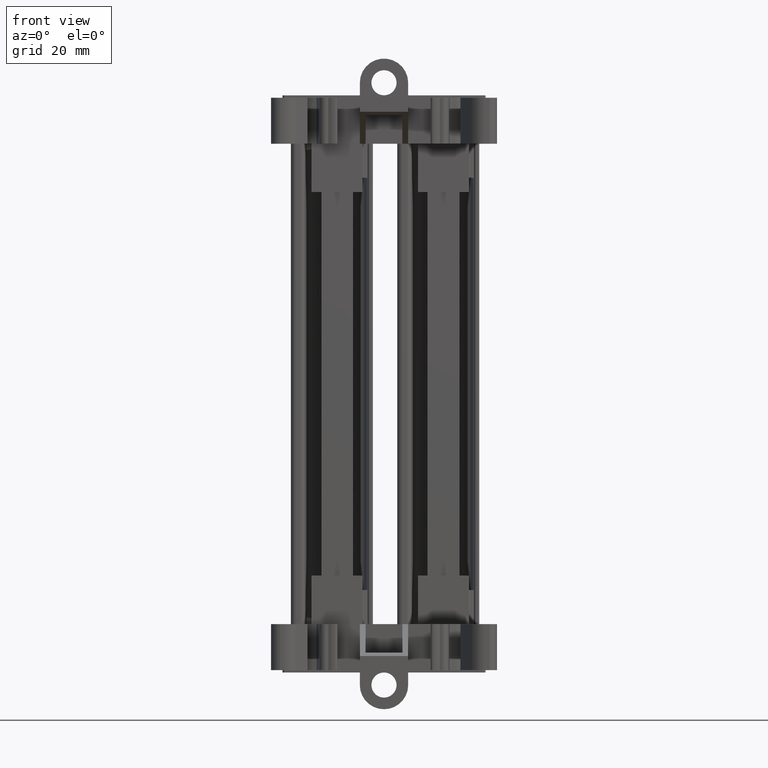
[diagram: clean part render]
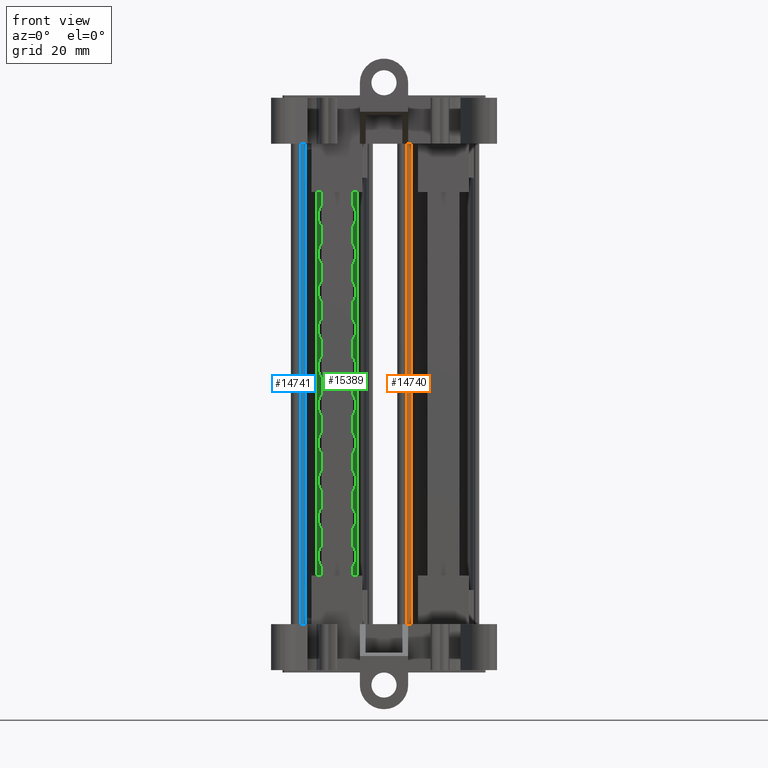
[diagram: same view with three faces highlighted in distinct colors, each labeled with its STEP entity id]
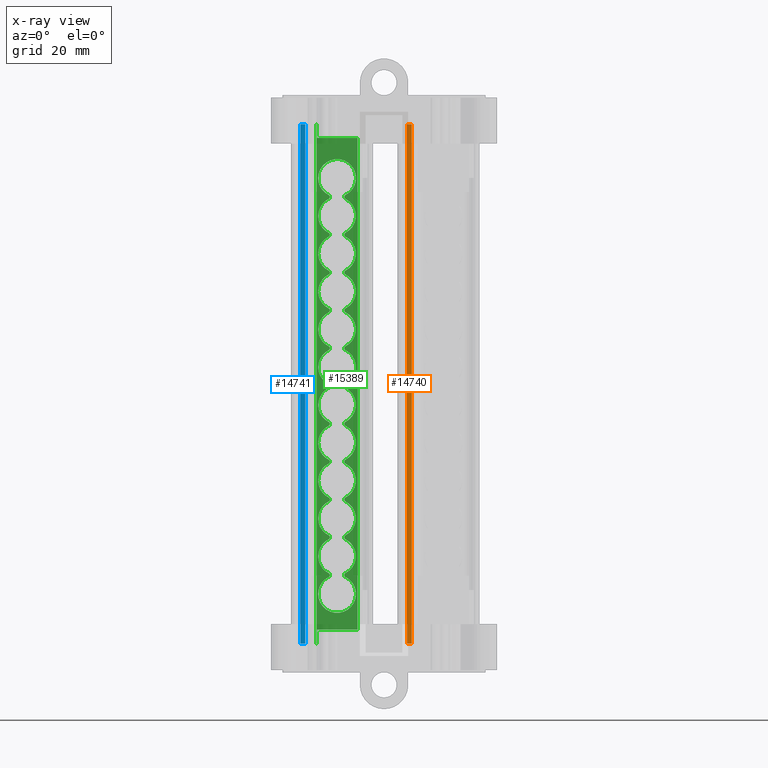
[diagram: x-ray of the same camera — body ghosted, the three highlighted faces saturated]
A machine part, front view with three faces highlighted in distinct colors.
The next image is the same camera in x-ray (body ghosted, the three faces saturated) — at least one of them is partly hidden behind the body in this view.
Their STEP definitions:

[orange] entity #14740 — the highlighted cylindrical surface (edge-blend (fillet) strip) has radius 0.9996 mm, axis along (-0, -0, -1).
#5645 = ORIENTED_EDGE ( 'NONE', *, *, #13143, .F. ) ;
#5649 = ORIENTED_EDGE ( 'NONE', *, *, #13065, .T. ) ;
#5653 = ORIENTED_EDGE ( 'NONE', *, *, #13183, .T. ) ;
#5663 = ORIENTED_EDGE ( 'NONE', *, *, #13235, .T. ) ;
#13065 = EDGE_CURVE ( 'NONE', #21042, #21077, #49789, .T. ) ;
#13143 = EDGE_CURVE ( 'NONE', #21042, #21078, #39813, .T. ) ;
#13183 = EDGE_CURVE ( 'NONE', #21077, #21065, #39963, .T. ) ;
#13235 = EDGE_CURVE ( 'NONE', #21065, #21078, #49034, .T. ) ;
#14740 = ADVANCED_FACE ( 'NONE', ( #48040 ), #48051, .T. ) ;
#21042 = VERTEX_POINT ( 'NONE', #64377 ) ;
#21065 = VERTEX_POINT ( 'NONE', #64415 ) ;
#21077 = VERTEX_POINT ( 'NONE', #64417 ) ;
#21078 = VERTEX_POINT ( 'NONE', #64397 ) ;
#38528 = DIRECTION ( 'NONE',  ( 2.546410930752312900E-013, 1.604972357196125300E-014, 1.000000000000000000 ) ) ;
#38540 = CARTESIAN_POINT ( 'NONE',  ( -42.11266066103439000, 26.32396892253897400, -36.09779384098946100 ) ) ;
#38542 = DIRECTION ( 'NONE',  ( -1.000000000000000000, 0.0000000000000000000, 2.568363609471387600E-013 ) ) ;
#39288 = CARTESIAN_POINT ( 'NONE',  ( -42.11266066100712600, 26.32396892254069300, 70.97218928989246900 ) ) ;
#39289 = DIRECTION ( 'NONE',  ( -1.387778780767670500E-017, -9.690813043904511800E-032, -1.000000000000000000 ) ) ;
#39317 = DIRECTION ( 'NONE',  ( 1.000000000000000000, 0.0000000000000000000, 0.0000000000000000000 ) ) ;
#39808 = CARTESIAN_POINT ( 'NONE',  ( -41.11319169604625800, 26.30652312685981200, 69.93349374701759300 ) ) ;
#39813 = LINE ( 'NONE', #39808, #48862 ) ;
#39830 = DIRECTION ( 'NONE',  ( -2.682451407240271800E-013, 4.682236348910204400E-015, -1.000000000000000000 ) ) ;
#39958 = DIRECTION ( 'NONE',  ( -2.546410930752312900E-013, -1.604972357196125300E-014, -1.000000000000000000 ) ) ;
#39963 = LINE ( 'NONE', #39979, #48928 ) ;
#39979 = CARTESIAN_POINT ( 'NONE',  ( -42.11266066100613900, 25.32434771042809600, 70.93311495913008000 ) ) ;
#46882 = AXIS2_PLACEMENT_3D ( 'NONE', #48052, #48028, #48026 ) ;
#48026 = DIRECTION ( 'NONE',  ( -1.000000000000000000, 0.0000000000000000000, 2.498948376782971800E-013 ) ) ;
#48028 = DIRECTION ( 'NONE',  ( -2.546410930752312900E-013, -1.604972357196125300E-014, -1.000000000000000000 ) ) ;
#48040 = FACE_OUTER_BOUND ( 'NONE', #61340, .T. ) ;
#48051 = CYLINDRICAL_SURFACE ( 'NONE', #46882, 0.9996212121125974700 ) ;
#48052 = CARTESIAN_POINT ( 'NONE',  ( -42.11266066100713300, 26.32396892254069300, 70.93311495913006600 ) ) ;
#48862 = VECTOR ( 'NONE', #39830, 1000.000000000000000 ) ;
#48928 = VECTOR ( 'NONE', #39958, 1000.000000000000000 ) ;
#49032 = AXIS2_PLACEMENT_3D ( 'NONE', #38540, #38528, #38542 ) ;
#49034 = CIRCLE ( 'NONE', #49032, 0.9996212121125974700 ) ;
#49789 = CIRCLE ( 'NONE', #49802, 0.9996212121125974700 ) ;
#49802 = AXIS2_PLACEMENT_3D ( 'NONE', #39288, #39289, #39317 ) ;
#61340 = EDGE_LOOP ( 'NONE', ( #5645, #5649, #5653, #5663 ) ) ;
#64377 = CARTESIAN_POINT ( 'NONE',  ( -41.11319169604598800, 26.30652312685969500, 70.97218928989246900 ) ) ;
#64397 = CARTESIAN_POINT ( 'NONE',  ( -41.11319169607451600, 26.30652312685969500, -36.09779384098961700 ) ) ;
#64415 = CARTESIAN_POINT ( 'NONE',  ( -42.11266066103039000, 25.32434771042624900, -36.09779384098944600 ) ) ;
#64417 = CARTESIAN_POINT ( 'NONE',  ( -42.11266066100613200, 25.32434771042809600, 70.97218928989246900 ) ) ;

[blue] entity #14741 — the highlighted cylindrical surface (edge-blend (fillet) strip) has radius 0.9996 mm, axis along (-0, -0, -1).
#5637 = ORIENTED_EDGE ( 'NONE', *, *, #13085, .T. ) ;
#5655 = ORIENTED_EDGE ( 'NONE', *, *, #13149, .F. ) ;
#5713 = ORIENTED_EDGE ( 'NONE', *, *, #13181, .T. ) ;
#5747 = ORIENTED_EDGE ( 'NONE', *, *, #12975, .T. ) ;
#12975 = EDGE_CURVE ( 'NONE', #21075, #21064, #49698, .T. ) ;
#13085 = EDGE_CURVE ( 'NONE', #21058, #21086, #48824, .T. ) ;
#13149 = EDGE_CURVE ( 'NONE', #21075, #21086, #39801, .T. ) ;
#13181 = EDGE_CURVE ( 'NONE', #21064, #21058, #39959, .T. ) ;
#14741 = ADVANCED_FACE ( 'NONE', ( #48044 ), #48036, .T. ) ;
#21058 = VERTEX_POINT ( 'NONE', #64353 ) ;
#21064 = VERTEX_POINT ( 'NONE', #64404 ) ;
#21075 = VERTEX_POINT ( 'NONE', #64416 ) ;
#21086 = VERTEX_POINT ( 'NONE', #64402 ) ;
#36849 = DIRECTION ( 'NONE',  ( 1.000000000000000000, 0.0000000000000000000, 0.0000000000000000000 ) ) ;
#36853 = DIRECTION ( 'NONE',  ( -1.387778780767670500E-017, -9.690813043904511800E-032, -1.000000000000000000 ) ) ;
#36859 = CARTESIAN_POINT ( 'NONE',  ( -64.04789127920845700, 14.35929767624860500, 70.97218928989246900 ) ) ;
#39515 = DIRECTION ( 'NONE',  ( 2.546410930752312900E-013, 1.604972357196125300E-014, 1.000000000000000000 ) ) ;
#39518 = CARTESIAN_POINT ( 'NONE',  ( -64.04789127923571400, 14.35929767624688600, -36.09779384098946100 ) ) ;
#39557 = DIRECTION ( 'NONE',  ( -1.000000000000000000, 0.0000000000000000000, 2.568363609471387600E-013 ) ) ;
#39801 = LINE ( 'NONE', #39888, #48852 ) ;
#39861 = DIRECTION ( 'NONE',  ( -2.682451407240271800E-013, 4.682236348910204400E-015, -1.000000000000000000 ) ) ;
#39888 = CARTESIAN_POINT ( 'NONE',  ( -63.04842231424758100, 14.34185188056802800, 69.96599374775758000 ) ) ;
#39955 = DIRECTION ( 'NONE',  ( -2.546410930752312900E-013, -1.604972357196125300E-014, -1.000000000000000000 ) ) ;
#39959 = LINE ( 'NONE', #39988, #48967 ) ;
#39988 = CARTESIAN_POINT ( 'NONE',  ( -64.04789127920820100, 13.35967646413600800, 70.96561495987006700 ) ) ;
#46926 = AXIS2_PLACEMENT_3D ( 'NONE', #48037, #48063, #48042 ) ;
#48036 = CYLINDRICAL_SURFACE ( 'NONE', #46926, 0.9996212121125974700 ) ;
#48037 = CARTESIAN_POINT ( 'NONE',  ( -64.04789127920845700, 14.35929767624860500, 70.96561495987005200 ) ) ;
#48042 = DIRECTION ( 'NONE',  ( -1.000000000000000000, 0.0000000000000000000, 2.498948376782971800E-013 ) ) ;
#48044 = FACE_OUTER_BOUND ( 'NONE', #61246, .T. ) ;
#48063 = DIRECTION ( 'NONE',  ( -2.546410930752312900E-013, -1.604972357196125300E-014, -1.000000000000000000 ) ) ;
#48821 = AXIS2_PLACEMENT_3D ( 'NONE', #39518, #39515, #39557 ) ;
#48824 = CIRCLE ( 'NONE', #48821, 0.9996212121125974700 ) ;
#48852 = VECTOR ( 'NONE', #39861, 1000.000000000000000 ) ;
#48967 = VECTOR ( 'NONE', #39955, 1000.000000000000000 ) ;
#49698 = CIRCLE ( 'NONE', #49700, 0.9996212121125974700 ) ;
#49700 = AXIS2_PLACEMENT_3D ( 'NONE', #36859, #36853, #36849 ) ;
#61246 = EDGE_LOOP ( 'NONE', ( #5655, #5747, #5713, #5637 ) ) ;
#64353 = CARTESIAN_POINT ( 'NONE',  ( -64.04789127923560000, 13.35967646413409300, -36.09779384098944600 ) ) ;
#64402 = CARTESIAN_POINT ( 'NONE',  ( -63.04842231427604600, 14.34185188056748600, -36.09779384098980900 ) ) ;
#64404 = CARTESIAN_POINT ( 'NONE',  ( -64.04789127920820100, 13.35967646413600800, 70.97218928989246900 ) ) ;
#64416 = CARTESIAN_POINT ( 'NONE',  ( -63.04842231424731800, 14.34185188056748900, 70.97218928989246900 ) ) ;

[green] entity #15389 — the highlighted planar face has unit normal (-0, -1, 0).
#9682 = EDGE_CURVE ( 'NONE', #21277, #21313, #34968, .T. ) ;
#9687 = EDGE_CURVE ( 'NONE', #21229, #21195, #34874, .T. ) ;
#9694 = EDGE_CURVE ( 'NONE', #21313, #21215, #35008, .T. ) ;
#9697 = EDGE_CURVE ( 'NONE', #21195, #21289, #35018, .T. ) ;
#9711 = EDGE_CURVE ( 'NONE', #21067, #21184, #23380, .T. ) ;
#9712 = EDGE_CURVE ( 'NONE', #21235, #21270, #35014, .T. ) ;
#9731 = EDGE_CURVE ( 'NONE', #21271, #21277, #34977, .T. ) ;
#9738 = EDGE_CURVE ( 'NONE', #21270, #21271, #35036, .T. ) ;
#9747 = EDGE_CURVE ( 'NONE', #21324, #21243, #35088, .T. ) ;
#9756 = EDGE_CURVE ( 'NONE', #21296, #20877, #35086, .T. ) ;
#9778 = EDGE_CURVE ( 'NONE', #21282, #21072, #24656, .T. ) ;
#9784 = EDGE_CURVE ( 'NONE', #21228, #21324, #35055, .T. ) ;
#9785 = EDGE_CURVE ( 'NONE', #20875, #21218, #35062, .T. ) ;
#9787 = EDGE_CURVE ( 'NONE', #21289, #21235, #35052, .T. ) ;
#9795 = EDGE_CURVE ( 'NONE', #21283, #21239, #35216, .T. ) ;
#9797 = EDGE_CURVE ( 'NONE', #21218, #20835, #35240, .T. ) ;
#9799 = EDGE_CURVE ( 'NONE', #20821, #21247, #35227, .T. ) ;
#9802 = EDGE_CURVE ( 'NONE', #20892, #21240, #35114, .T. ) ;
#9803 = EDGE_CURVE ( 'NONE', #20834, #21296, #35225, .T. ) ;
#9804 = EDGE_CURVE ( 'NONE', #21224, #21290, #24746, .T. ) ;
#9807 = EDGE_CURVE ( 'NONE', #21226, #21229, #35205, .T. ) ;
#9808 = EDGE_CURVE ( 'NONE', #21239, #21326, #35229, .T. ) ;
#9809 = EDGE_CURVE ( 'NONE', #20880, #21225, #35127, .T. ) ;
#9811 = EDGE_CURVE ( 'NONE', #21216, #21339, #35157, .T. ) ;
#9813 = EDGE_CURVE ( 'NONE', #21339, #21260, #35116, .T. ) ;
#9814 = EDGE_CURVE ( 'NONE', #21184, #21224, #24770, .T. ) ;
#9820 = EDGE_CURVE ( 'NONE', #21245, #21283, #35144, .T. ) ;
#9821 = EDGE_CURVE ( 'NONE', #20876, #21295, #35207, .T. ) ;
#9823 = EDGE_CURVE ( 'NONE', #20863, #21276, #35214, .T. ) ;
#9824 = EDGE_CURVE ( 'NONE', #20886, #21213, #35142, .T. ) ;
#9825 = EDGE_CURVE ( 'NONE', #20867, #21273, #35209, .T. ) ;
#9826 = EDGE_CURVE ( 'NONE', #21290, #21249, #24779, .T. ) ;
#9827 = EDGE_CURVE ( 'NONE', #21225, #20883, #35242, .T. ) ;
#9830 = EDGE_CURVE ( 'NONE', #20811, #21238, #35307, .T. ) ;
#9832 = EDGE_CURVE ( 'NONE', #21249, #21217, #24845, .T. ) ;
#9835 = EDGE_CURVE ( 'NONE', #20829, #21334, #35283, .T. ) ;
#9836 = EDGE_CURVE ( 'NONE', #21326, #21216, #35357, .T. ) ;
#9840 = EDGE_CURVE ( 'NONE', #21240, #20822, #35364, .T. ) ;
#9841 = EDGE_CURVE ( 'NONE', #21318, #20897, #35300, .T. ) ;
#9848 = EDGE_CURVE ( 'NONE', #21276, #20840, #35375, .T. ) ;
#9852 = EDGE_CURVE ( 'NONE', #21217, #21282, #24932, .T. ) ;
#9856 = EDGE_CURVE ( 'NONE', #21260, #20902, #35296, .T. ) ;
#9869 = EDGE_CURVE ( 'NONE', #21247, #20903, #35253, .T. ) ;
#9870 = EDGE_CURVE ( 'NONE', #21295, #21228, #35350, .T. ) ;
#9877 = EDGE_CURVE ( 'NONE', #21213, #20855, #35508, .T. ) ;
#9882 = EDGE_CURVE ( 'NONE', #21243, #21226, #35426, .T. ) ;
#9890 = EDGE_CURVE ( 'NONE', #21238, #20871, #35458, .T. ) ;
#9899 = EDGE_CURVE ( 'NONE', #20891, #21318, #35440, .T. ) ;
#9901 = EDGE_CURVE ( 'NONE', #21334, #20870, #35386, .T. ) ;
#9907 = EDGE_CURVE ( 'NONE', #21215, #21245, #35400, .T. ) ;
#9918 = EDGE_CURVE ( 'NONE', #21273, #20879, #35490, .T. ) ;
#12397 = EDGE_CURVE ( 'NONE', #20899, #20834, #68872, .T. ) ;
#12423 = EDGE_CURVE ( 'NONE', #20883, #20899, #68824, .T. ) ;
#12472 = EDGE_CURVE ( 'NONE', #20877, #20829, #68921, .T. ) ;
#12486 = EDGE_CURVE ( 'NONE', #20855, #20856, #68813, .T. ) ;
#12493 = EDGE_CURVE ( 'NONE', #20835, #20888, #68859, .T. ) ;
#12509 = EDGE_CURVE ( 'NONE', #20840, #20797, #68979, .T. ) ;
#12516 = EDGE_CURVE ( 'NONE', #20870, #20874, #68946, .T. ) ;
#12521 = EDGE_CURVE ( 'NONE', #20857, #20886, #69023, .T. ) ;
#12544 = EDGE_CURVE ( 'NONE', #20874, #20863, #68932, .T. ) ;
#12551 = EDGE_CURVE ( 'NONE', #20904, #20867, #69033, .T. ) ;
#12565 = EDGE_CURVE ( 'NONE', #20797, #20876, #69015, .T. ) ;
#12572 = EDGE_CURVE ( 'NONE', #20879, #20857, #68944, .T. ) ;
#12586 = EDGE_CURVE ( 'NONE', #20822, #20811, #68972, .T. ) ;
#12592 = EDGE_CURVE ( 'NONE', #20897, #20892, #69006, .T. ) ;
#12642 = EDGE_CURVE ( 'NONE', #20871, #20820, #49266, .T. ) ;
#12665 = EDGE_CURVE ( 'NONE', #20902, #20864, #49237, .T. ) ;
#12672 = EDGE_CURVE ( 'NONE', #20864, #20891, #49294, .T. ) ;
#12678 = EDGE_CURVE ( 'NONE', #20820, #20875, #49248, .T. ) ;
#12698 = EDGE_CURVE ( 'NONE', #20903, #20904, #49254, .T. ) ;
#12781 = EDGE_CURVE ( 'NONE', #20856, #20880, #49363, .T. ) ;
#12795 = EDGE_CURVE ( 'NONE', #20888, #20821, #49417, .T. ) ;
#13069 = EDGE_CURVE ( 'NONE', #21067, #21072, #39338, .T. ) ;
#15389 = ADVANCED_FACE ( 'NONE', ( #51412, #51443 ), #51434, .T. ) ;
#20797 = VERTEX_POINT ( 'NONE', #58262 ) ;
#20811 = VERTEX_POINT ( 'NONE', #58182 ) ;
#20820 = VERTEX_POINT ( 'NONE', #58238 ) ;
#20821 = VERTEX_POINT ( 'NONE', #58236 ) ;
#20822 = VERTEX_POINT ( 'NONE', #58176 ) ;
#20829 = VERTEX_POINT ( 'NONE', #58268 ) ;
#20834 = VERTEX_POINT ( 'NONE', #58206 ) ;
#20835 = VERTEX_POINT ( 'NONE', #58274 ) ;
#20840 = VERTEX_POINT ( 'NONE', #58148 ) ;
#20855 = VERTEX_POINT ( 'NONE', #58212 ) ;
#20856 = VERTEX_POINT ( 'NONE', #58214 ) ;
#20857 = VERTEX_POINT ( 'NONE', #58222 ) ;
#20863 = VERTEX_POINT ( 'NONE', #58378 ) ;
#20864 = VERTEX_POINT ( 'NONE', #58354 ) ;
#20867 = VERTEX_POINT ( 'NONE', #58388 ) ;
#20870 = VERTEX_POINT ( 'NONE', #58390 ) ;
#20871 = VERTEX_POINT ( 'NONE', #58384 ) ;
#20874 = VERTEX_POINT ( 'NONE', #58302 ) ;
#20875 = VERTEX_POINT ( 'NONE', #58380 ) ;
#20876 = VERTEX_POINT ( 'NONE', #58304 ) ;
#20877 = VERTEX_POINT ( 'NONE', #58288 ) ;
#20879 = VERTEX_POINT ( 'NONE', #58296 ) ;
#20880 = VERTEX_POINT ( 'NONE', #58400 ) ;
#20883 = VERTEX_POINT ( 'NONE', #58320 ) ;
#20886 = VERTEX_POINT ( 'NONE', #58280 ) ;
#20888 = VERTEX_POINT ( 'NONE', #58356 ) ;
#20891 = VERTEX_POINT ( 'NONE', #58394 ) ;
#20892 = VERTEX_POINT ( 'NONE', #58318 ) ;
#20897 = VERTEX_POINT ( 'NONE', #58276 ) ;
#20899 = VERTEX_POINT ( 'NONE', #58372 ) ;
#20902 = VERTEX_POINT ( 'NONE', #58348 ) ;
#20903 = VERTEX_POINT ( 'NONE', #58340 ) ;
#20904 = VERTEX_POINT ( 'NONE', #58298 ) ;
#21067 = VERTEX_POINT ( 'NONE', #64434 ) ;
#21072 = VERTEX_POINT ( 'NONE', #64405 ) ;
#21184 = VERTEX_POINT ( 'NONE', #64492 ) ;
#21195 = VERTEX_POINT ( 'NONE', #64572 ) ;
#21213 = VERTEX_POINT ( 'NONE', #64527 ) ;
#21215 = VERTEX_POINT ( 'NONE', #64550 ) ;
#21216 = VERTEX_POINT ( 'NONE', #64561 ) ;
#21217 = VERTEX_POINT ( 'NONE', #64539 ) ;
#21218 = VERTEX_POINT ( 'NONE', #64574 ) ;
#21224 = VERTEX_POINT ( 'NONE', #64555 ) ;
#21225 = VERTEX_POINT ( 'NONE', #64536 ) ;
#21226 = VERTEX_POINT ( 'NONE', #64530 ) ;
#21228 = VERTEX_POINT ( 'NONE', #64541 ) ;
#21229 = VERTEX_POINT ( 'NONE', #64556 ) ;
#21235 = VERTEX_POINT ( 'NONE', #64518 ) ;
#21238 = VERTEX_POINT ( 'NONE', #64519 ) ;
#21239 = VERTEX_POINT ( 'NONE', #64565 ) ;
#21240 = VERTEX_POINT ( 'NONE', #64545 ) ;
#21243 = VERTEX_POINT ( 'NONE', #64525 ) ;
#21245 = VERTEX_POINT ( 'NONE', #64521 ) ;
#21247 = VERTEX_POINT ( 'NONE', #64551 ) ;
#21249 = VERTEX_POINT ( 'NONE', #64558 ) ;
#21260 = VERTEX_POINT ( 'NONE', #61649 ) ;
#21270 = VERTEX_POINT ( 'NONE', #61517 ) ;
#21271 = VERTEX_POINT ( 'NONE', #61652 ) ;
#21273 = VERTEX_POINT ( 'NONE', #61550 ) ;
#21276 = VERTEX_POINT ( 'NONE', #61601 ) ;
#21277 = VERTEX_POINT ( 'NONE', #61571 ) ;
#21282 = VERTEX_POINT ( 'NONE', #61607 ) ;
#21283 = VERTEX_POINT ( 'NONE', #61526 ) ;
#21289 = VERTEX_POINT ( 'NONE', #61643 ) ;
#21290 = VERTEX_POINT ( 'NONE', #61664 ) ;
#21295 = VERTEX_POINT ( 'NONE', #61589 ) ;
#21296 = VERTEX_POINT ( 'NONE', #61580 ) ;
#21313 = VERTEX_POINT ( 'NONE', #61496 ) ;
#21318 = VERTEX_POINT ( 'NONE', #61688 ) ;
#21324 = VERTEX_POINT ( 'NONE', #61844 ) ;
#21326 = VERTEX_POINT ( 'NONE', #61784 ) ;
#21334 = VERTEX_POINT ( 'NONE', #61769 ) ;
#21339 = VERTEX_POINT ( 'NONE', #61715 ) ;
#23263 = CARTESIAN_POINT ( 'NONE',  ( -56.50163004032099000, 35.55127427694061700, 13.08754677854850500 ) ) ;
#23273 = DIRECTION ( 'NONE',  ( 2.045596572148984500E-014, 1.000000000000000000, -1.600901665160075500E-014 ) ) ;
#23287 = DIRECTION ( 'NONE',  ( -1.000000000000000000, 2.134535553545133800E-014, 0.0000000000000000000 ) ) ;
#23292 = CARTESIAN_POINT ( 'NONE',  ( -54.57557499629883300, 35.55127427682691600, 9.189024051308850400 ) ) ;
#23296 = DIRECTION ( 'NONE',  ( 0.0000000000000000000, -3.101716830836148200E-014, -1.000000000000000000 ) ) ;
#23300 = CARTESIAN_POINT ( 'NONE',  ( -56.50163004031485800, 35.55127427694059600, 36.47868314198333900 ) ) ;
#23303 = DIRECTION ( 'NONE',  ( 2.045596572153223200E-014, 1.000000000000000000, -1.423023702367459700E-014 ) ) ;
#23311 = DIRECTION ( 'NONE',  ( -1.388304653784218700E-014, -1.000000000000000000, 2.776609307568437300E-014 ) ) ;
#23319 = DIRECTION ( 'NONE',  ( -1.000000000000000000, 2.134535553546299500E-014, 0.0000000000000000000 ) ) ;
#23323 = CARTESIAN_POINT ( 'NONE',  ( -54.57557499629271500, 35.55127427694060300, 32.58016041474370900 ) ) ;
#23327 = DIRECTION ( 'NONE',  ( -1.388304653798018700E-014, -1.000000000000000000, 1.388304653798018700E-014 ) ) ;
#23329 = DIRECTION ( 'NONE',  ( 0.0000000000000000000, -1.550858415429275900E-014, -1.000000000000000000 ) ) ;
#23380 = LINE ( 'NONE', #23397, #34980 ) ;
#23395 = CARTESIAN_POINT ( 'NONE',  ( -54.57557499629471200, 35.55127427688376000, 24.78311496026531200 ) ) ;
#23397 = CARTESIAN_POINT ( 'NONE',  ( -60.71356041057318700, 35.55127427689210200, 69.96599374775655600 ) ) ;
#23402 = DIRECTION ( 'NONE',  ( -1.388304653790417700E-014, -1.000000000000000000, 2.082456980685637300E-014 ) ) ;
#23416 = DIRECTION ( 'NONE',  ( 0.0000000000000000000, -1.550858415411490000E-014, -1.000000000000000000 ) ) ;
#23434 = DIRECTION ( 'NONE',  ( -2.686070184306041300E-013, -1.604972357196100300E-014, -1.000000000000000000 ) ) ;
#23473 = CARTESIAN_POINT ( 'NONE',  ( -54.57557499629676600, 35.55127427694059600, 16.98606950578713500 ) ) ;
#23482 = DIRECTION ( 'NONE',  ( 0.0000000000000000000, -1.550858415413606600E-014, -1.000000000000000000 ) ) ;
#23484 = DIRECTION ( 'NONE',  ( -1.388304653782252700E-014, -1.000000000000000000, 2.082456980673398200E-014 ) ) ;
#23502 = DIRECTION ( 'NONE',  ( 1.867718609350753700E-014, 1.000000000000000000, -1.511962683760134900E-014 ) ) ;
#23505 = DIRECTION ( 'NONE',  ( -1.000000000000000000, 1.956657590748404000E-014, 0.0000000000000000000 ) ) ;
#23509 = CARTESIAN_POINT ( 'NONE',  ( -56.50163004031896500, 35.55127427694062400, 20.88459223302678700 ) ) ;
#23518 = DIRECTION ( 'NONE',  ( -1.388304653813784500E-014, -1.000000000000000000, 2.776609307627598100E-014 ) ) ;
#23520 = DIRECTION ( 'NONE',  ( 0.0000000000000000000, -3.101716830840032600E-014, -1.000000000000000000 ) ) ;
#23523 = CARTESIAN_POINT ( 'NONE',  ( -54.57557499628860900, 35.55127427688376000, 48.17425132370026100 ) ) ;
#24080 = DIRECTION ( 'NONE',  ( -3.470761634462034100E-014, -1.000000000000000000, 1.388304653784820900E-014 ) ) ;
#24099 = CARTESIAN_POINT ( 'NONE',  ( -58.42768508434927800, 35.55127427688378800, -6.405066857647065100 ) ) ;
#24100 = DIRECTION ( 'NONE',  ( 1.000000000000000000, -3.101716830837627500E-014, 0.0000000000000000000 ) ) ;
#24167 = DIRECTION ( 'NONE',  ( -1.000000000000000000, 1.956657590750680400E-014, 0.0000000000000000000 ) ) ;
#24170 = DIRECTION ( 'NONE',  ( -1.388304653784970300E-014, -1.000000000000000000, 0.0000000000000000000 ) ) ;
#24179 = CARTESIAN_POINT ( 'NONE',  ( -56.50163004033117200, 35.55127427688358900, -25.89768049384337400 ) ) ;
#24183 = DIRECTION ( 'NONE',  ( 2.045596572146881400E-014, 1.000000000000000000, -1.600901665158427700E-014 ) ) ;
#24190 = DIRECTION ( 'NONE',  ( 1.000000000000000000, -1.550858415406619500E-014, 0.0000000000000000000 ) ) ;
#24217 = CARTESIAN_POINT ( 'NONE',  ( -58.42768508433503200, 35.55127427688377400, 48.17425132370129100 ) ) ;
#24234 = DIRECTION ( 'NONE',  ( 2.045596572153787400E-014, 1.000000000000000000, -1.600901665163836100E-014 ) ) ;
#24244 = CARTESIAN_POINT ( 'NONE',  ( -56.50163004032304300, 35.55127427694063200, 5.290501324070230100 ) ) ;
#24265 = DIRECTION ( 'NONE',  ( -1.000000000000000000, 2.134535553546884200E-014, 0.0000000000000000000 ) ) ;
#24273 = DIRECTION ( 'NONE',  ( -2.082456980673032200E-014, -1.000000000000000000, 0.0000000000000000000 ) ) ;
#24274 = DIRECTION ( 'NONE',  ( 1.000000000000000000, -1.550858415399019000E-014, 0.0000000000000000000 ) ) ;
#24303 = CARTESIAN_POINT ( 'NONE',  ( -58.42768508434318900, 35.55127427688377400, 16.98606950578818000 ) ) ;
#24541 = CARTESIAN_POINT ( 'NONE',  ( -58.42768508433709200, 35.55127427688376000, 40.37720586922300500 ) ) ;
#24559 = DIRECTION ( 'NONE',  ( 0.0000000000000000000, 0.0000000000000000000, -1.000000000000000000 ) ) ;
#24582 = DIRECTION ( 'NONE',  ( -6.941523269065021800E-015, -1.000000000000000000, -6.941523269065262400E-015 ) ) ;
#24642 = DIRECTION ( 'NONE',  ( 3.231096739768512300E-028, 1.604972357196641200E-014, 1.000000000000000000 ) ) ;
#24646 = CARTESIAN_POINT ( 'NONE',  ( -60.60353458027078200, 35.55127427689211600, 69.96599374775658500 ) ) ;
#24647 = DIRECTION ( 'NONE',  ( 2.134535553550946500E-014, 1.000000000000000000, -1.600901665163210100E-014 ) ) ;
#24654 = DIRECTION ( 'NONE',  ( -1.000000000000000000, 2.134535553546018300E-014, 0.0000000000000000000 ) ) ;
#24655 = CARTESIAN_POINT ( 'NONE',  ( -56.50163004031690400, 35.55127427688366700, 28.68163768750506300 ) ) ;
#24656 = LINE ( 'NONE', #24646, #35034 ) ;
#24657 = DIRECTION ( 'NONE',  ( -1.000000000000000000, 1.956657590751801200E-014, 0.0000000000000000000 ) ) ;
#24660 = DIRECTION ( 'NONE',  ( 2.045596572152958500E-014, 1.000000000000000000, -1.511962683765234400E-014 ) ) ;
#24664 = CARTESIAN_POINT ( 'NONE',  ( -56.50163004032507500, 35.55127427688361100, -2.506544130408241000 ) ) ;
#24665 = DIRECTION ( 'NONE',  ( 1.956657590756287300E-014, 1.000000000000000000, -1.423023702368209200E-014 ) ) ;
#24680 = CARTESIAN_POINT ( 'NONE',  ( -56.50163004031080000, 35.55127427694061000, 52.07277405093992000 ) ) ;
#24684 = DIRECTION ( 'NONE',  ( -1.000000000000000000, 2.134535553549317600E-014, 0.0000000000000000000 ) ) ;
#24691 = CARTESIAN_POINT ( 'NONE',  ( -58.42768508434731700, 35.55127427682693100, 1.391978596831197700 ) ) ;
#24692 = DIRECTION ( 'NONE',  ( 2.134535553549001100E-014, 1.000000000000000000, -1.600901665161752000E-014 ) ) ;
#24693 = DIRECTION ( 'NONE',  ( 1.000000000000000000, -1.550858415400991500E-014, 0.0000000000000000000 ) ) ;
#24696 = DIRECTION ( 'NONE',  ( -1.388304653780460400E-014, -1.000000000000000000, 1.388304653780421900E-014 ) ) ;
#24701 = DIRECTION ( 'NONE',  ( 2.045596572155650400E-014, 1.000000000000000000, -1.600901665165292100E-014 ) ) ;
#24702 = DIRECTION ( 'NONE',  ( -1.000000000000000000, 2.134535553548831700E-014, 0.0000000000000000000 ) ) ;
#24704 = DIRECTION ( 'NONE',  ( -1.000000000000000000, 2.134535553547373600E-014, 0.0000000000000000000 ) ) ;
#24712 = CARTESIAN_POINT ( 'NONE',  ( -56.50163004032507500, 35.55127427688368200, -2.506544130408241000 ) ) ;
#24714 = CARTESIAN_POINT ( 'NONE',  ( -56.50163004032304300, 35.55127427688368200, 5.290501324070230100 ) ) ;
#24726 = CARTESIAN_POINT ( 'NONE',  ( -56.50163004031690400, 35.55127427682674600, 28.68163768750506300 ) ) ;
#24727 = CARTESIAN_POINT ( 'NONE',  ( -54.57557499629066200, 35.55127427688376700, 40.37720586922198900 ) ) ;
#24728 = DIRECTION ( 'NONE',  ( -1.388304653786184500E-014, -1.000000000000000000, 1.388304653786184500E-014 ) ) ;
#24729 = CARTESIAN_POINT ( 'NONE',  ( -60.71356041056802200, 35.55127427689041800, -36.09779384098946100 ) ) ;
#24730 = DIRECTION ( 'NONE',  ( 2.045596572145802600E-014, 1.000000000000000000, -1.600901665157585200E-014 ) ) ;
#24731 = CARTESIAN_POINT ( 'NONE',  ( -56.50163004031485800, 35.55127427688368200, 36.47868314198333900 ) ) ;
#24734 = DIRECTION ( 'NONE',  ( 1.000000000000000000, -3.101716830854511700E-014, 0.0000000000000000000 ) ) ;
#24740 = DIRECTION ( 'NONE',  ( -2.082456980673543100E-014, -1.000000000000000000, 1.388304653782329800E-014 ) ) ;
#24745 = CARTESIAN_POINT ( 'NONE',  ( -56.50163004032912500, 35.55127427694042600, -18.10063503936502400 ) ) ;
#24746 = LINE ( 'NONE', #24759, #35136 ) ;
#24753 = DIRECTION ( 'NONE',  ( 3.231096739768512300E-028, 1.604972357196641200E-014, 1.000000000000000000 ) ) ;
#24755 = DIRECTION ( 'NONE',  ( -1.000000000000000000, 2.134535553545672800E-014, 0.0000000000000000000 ) ) ;
#24758 = DIRECTION ( 'NONE',  ( 2.045596572152439400E-014, 1.000000000000000000, -1.511962683764845300E-014 ) ) ;
#24759 = CARTESIAN_POINT ( 'NONE',  ( -60.60353458025417700, 35.55127427689211600, 69.96599374775658500 ) ) ;
#24760 = DIRECTION ( 'NONE',  ( -1.000000000000000000, 2.134535553550369700E-014, 0.0000000000000000000 ) ) ;
#24761 = CARTESIAN_POINT ( 'NONE',  ( -54.57557499630491500, 35.55127427694060300, -14.20211231212636900 ) ) ;
#24762 = DIRECTION ( 'NONE',  ( 2.045596572149497600E-014, 1.000000000000000000, -1.423023702364870100E-014 ) ) ;
#24764 = DIRECTION ( 'NONE',  ( -2.776609307513829200E-014, -1.000000000000000000, 1.388304653756888100E-014 ) ) ;
#24765 = DIRECTION ( 'NONE',  ( 1.000000000000000000, -1.550858415403372600E-014, 0.0000000000000000000 ) ) ;
#24766 = DIRECTION ( 'NONE',  ( -1.000000000000000000, 2.134535553541814900E-014, 0.0000000000000000000 ) ) ;
#24770 = LINE ( 'NONE', #24729, #35123 ) ;
#24771 = CARTESIAN_POINT ( 'NONE',  ( -54.57557499630286900, 35.55127427688377400, -6.405066857648078500 ) ) ;
#24772 = DIRECTION ( 'NONE',  ( 0.0000000000000000000, -1.550858415404190200E-014, -1.000000000000000000 ) ) ;
#24773 = DIRECTION ( 'NONE',  ( -1.000000000000000000, 1.956657590752302300E-014, 0.0000000000000000000 ) ) ;
#24779 = LINE ( 'NONE', #24790, #35369 ) ;
#24780 = CARTESIAN_POINT ( 'NONE',  ( -56.50163004031896500, 35.55127427688368900, 20.88459223302678700 ) ) ;
#24783 = DIRECTION ( 'NONE',  ( 1.867718609354156200E-014, 1.000000000000000000, -1.511962683762887700E-014 ) ) ;
#24784 = DIRECTION ( 'NONE',  ( -1.000000000000000000, 1.956657590748982100E-014, 0.0000000000000000000 ) ) ;
#24787 = DIRECTION ( 'NONE',  ( 2.134535553551734700E-014, 1.000000000000000000, -1.423023702367824500E-014 ) ) ;
#24788 = DIRECTION ( 'NONE',  ( -1.388304653768096200E-014, -1.000000000000000000, 0.0000000000000000000 ) ) ;
#24789 = DIRECTION ( 'NONE',  ( 1.000000000000000000, -1.550858415408255000E-014, 0.0000000000000000000 ) ) ;
#24790 = CARTESIAN_POINT ( 'NONE',  ( -60.71356041056802200, 35.55127427689045300, -33.27758272326203600 ) ) ;
#24794 = CARTESIAN_POINT ( 'NONE',  ( -56.50163004032912500, 35.55127427682683800, -18.10063503936502400 ) ) ;
#24796 = DIRECTION ( 'NONE',  ( 1.000000000000000000, -2.013179058991505200E-014, 0.0000000000000000000 ) ) ;
#24802 = DIRECTION ( 'NONE',  ( -1.000000000000000000, 2.134535553546644700E-014, 0.0000000000000000000 ) ) ;
#24803 = DIRECTION ( 'NONE',  ( -1.000000000000000000, 2.134535553551732500E-014, 0.0000000000000000000 ) ) ;
#24806 = CARTESIAN_POINT ( 'NONE',  ( -56.50163004030875400, 35.55127427688375300, 59.86981950541818500 ) ) ;
#24808 = DIRECTION ( 'NONE',  ( 2.045596572155114000E-014, 1.000000000000000000, -1.600901665164873000E-014 ) ) ;
#24811 = CARTESIAN_POINT ( 'NONE',  ( -54.57557499630089400, 35.55127427694061000, 1.391978596830198500 ) ) ;
#24814 = CARTESIAN_POINT ( 'NONE',  ( -56.50163004031080000, 35.55127427688368900, 52.07277405093992000 ) ) ;
#24817 = DIRECTION ( 'NONE',  ( 1.956657590756783600E-014, 1.000000000000000000, -1.423023702368574900E-014 ) ) ;
#24821 = DIRECTION ( 'NONE',  ( 2.134535553554540800E-014, 1.000000000000000000, -1.600901665165907000E-014 ) ) ;
#24823 = DIRECTION ( 'NONE',  ( 1.000000000000000000, -2.013179058991505200E-014, 0.0000000000000000000 ) ) ;
#24824 = CARTESIAN_POINT ( 'NONE',  ( -58.42768508433912400, 35.55127427688378800, 32.58016041474473200 ) ) ;
#24827 = DIRECTION ( 'NONE',  ( 2.045596572148476800E-014, 1.000000000000000000, -1.600901665159678800E-014 ) ) ;
#24828 = DIRECTION ( 'NONE',  ( 2.045596572152204700E-014, 1.000000000000000000, -1.600901665162594800E-014 ) ) ;
#24830 = CARTESIAN_POINT ( 'NONE',  ( -56.50163004031279700, 35.55127427682674600, 44.27572859646164700 ) ) ;
#24832 = CARTESIAN_POINT ( 'NONE',  ( -56.50163004032712900, 35.55127427694060300, -10.30358958488653300 ) ) ;
#24833 = CARTESIAN_POINT ( 'NONE',  ( -56.50163004032099000, 35.55127427682675300, 13.08754677854850500 ) ) ;
#24837 = DIRECTION ( 'NONE',  ( 1.000000000000000000, -3.101716830809486600E-014, 0.0000000000000000000 ) ) ;
#24839 = DIRECTION ( 'NONE',  ( -1.000000000000000000, 2.134535553549063300E-014, 0.0000000000000000000 ) ) ;
#24840 = DIRECTION ( 'NONE',  ( -1.000000000000000000, 2.134535553544605900E-014, 0.0000000000000000000 ) ) ;
#24845 = LINE ( 'NONE', #24862, #35342 ) ;
#24846 = DIRECTION ( 'NONE',  ( 3.231096739768512300E-028, 1.604972357196641200E-014, 1.000000000000000000 ) ) ;
#24848 = DIRECTION ( 'NONE',  ( -1.000000000000000000, 2.134535553546865200E-014, 0.0000000000000000000 ) ) ;
#24852 = DIRECTION ( 'NONE',  ( -1.000000000000000000, 2.134535553549655600E-014, 0.0000000000000000000 ) ) ;
#24855 = CARTESIAN_POINT ( 'NONE',  ( -56.50163004032712900, 35.55127427688368200, -10.30358958488653300 ) ) ;
#24857 = DIRECTION ( 'NONE',  ( 2.045596572155868400E-014, 1.000000000000000000, -1.511962683767385200E-014 ) ) ;
#24858 = DIRECTION ( 'NONE',  ( -2.776609307566837500E-014, -1.000000000000000000, 1.927389811716684800E-028 ) ) ;
#24862 = CARTESIAN_POINT ( 'NONE',  ( -52.29034639561562200, 35.55127427689194500, 69.96599374775658500 ) ) ;
#24867 = DIRECTION ( 'NONE',  ( -2.776609307576840900E-014, -1.000000000000000000, 2.776609307576913200E-014 ) ) ;
#24873 = CARTESIAN_POINT ( 'NONE',  ( -58.42768508435133900, 35.55127427694063200, -14.20211231212537100 ) ) ;
#24877 = CARTESIAN_POINT ( 'NONE',  ( -58.42768508433299200, 35.55127427694060300, 55.97129677817954300 ) ) ;
#24879 = DIRECTION ( 'NONE',  ( 0.0000000000000000000, -3.101716830854595600E-014, -1.000000000000000000 ) ) ;
#24883 = CARTESIAN_POINT ( 'NONE',  ( -58.42768508435339200, 35.55127427688378800, -21.99915776660365900 ) ) ;
#24884 = DIRECTION ( 'NONE',  ( -1.445542358720404400E-028, -1.000000000000000000, 6.941523268755964200E-015 ) ) ;
#24888 = DIRECTION ( 'NONE',  ( 0.0000000000000000000, -3.101716830823051900E-014, -1.000000000000000000 ) ) ;
#24902 = DIRECTION ( 'NONE',  ( -2.776609307521640500E-014, -1.000000000000000000, 2.776609307521727300E-014 ) ) ;
#24922 = CARTESIAN_POINT ( 'NONE',  ( -54.57557499630697600, 35.55127427688377400, -21.99915776660466100 ) ) ;
#24924 = CARTESIAN_POINT ( 'NONE',  ( -60.71356041056802200, 35.55127427689208700, 68.15197817216409200 ) ) ;
#24932 = LINE ( 'NONE', #24924, #35352 ) ;
#24936 = DIRECTION ( 'NONE',  ( -2.082456980686008300E-014, -1.000000000000000000, 1.388304653790670600E-014 ) ) ;
#24938 = DIRECTION ( 'NONE',  ( 1.000000000000000000, -1.550858415413762800E-014, 0.0000000000000000000 ) ) ;
#24939 = DIRECTION ( 'NONE',  ( -1.000000000000000000, 2.013179058991505200E-014, -0.0000000000000000000 ) ) ;
#24956 = DIRECTION ( 'NONE',  ( 0.0000000000000000000, 0.0000000000000000000, -1.000000000000000000 ) ) ;
#25023 = DIRECTION ( 'NONE',  ( 1.000000000000000000, -1.550858415406186600E-014, 0.0000000000000000000 ) ) ;
#25028 = CARTESIAN_POINT ( 'NONE',  ( -54.57557499628655500, 35.55127427688375300, 55.97129677817853400 ) ) ;
#25029 = CARTESIAN_POINT ( 'NONE',  ( -58.42768508434524900, 35.55127427688377400, 9.189024051309891300 ) ) ;
#25050 = DIRECTION ( 'NONE',  ( -1.388304653776335600E-014, -1.000000000000000000, 0.0000000000000000000 ) ) ;
#25052 = DIRECTION ( 'NONE',  ( 0.0000000000000000000, -1.550858415419583400E-014, -1.000000000000000000 ) ) ;
#25060 = DIRECTION ( 'NONE',  ( -1.388304653811847700E-014, -1.000000000000000000, 2.082456980717771700E-014 ) ) ;
#25078 = DIRECTION ( 'NONE',  ( 1.000000000000000000, -1.550858415393799900E-014, 0.0000000000000000000 ) ) ;
#25084 = DIRECTION ( 'NONE',  ( -1.388304653768009100E-014, -1.000000000000000000, 0.0000000000000000000 ) ) ;
#25119 = CARTESIAN_POINT ( 'NONE',  ( -58.42768508434113500, 35.55127427682693100, 24.78311496026644500 ) ) ;
#25166 = CARTESIAN_POINT ( 'NONE',  ( -56.50163004031279700, 35.55127427688366700, 44.27572859646164700 ) ) ;
#25177 = DIRECTION ( 'NONE',  ( -1.000000000000000000, 1.956657590751522500E-014, 0.0000000000000000000 ) ) ;
#25180 = DIRECTION ( 'NONE',  ( 1.956657590756007700E-014, 1.000000000000000000, -1.423023702368008500E-014 ) ) ;
#33150 = CARTESIAN_POINT ( 'NONE',  ( -56.50163004032507500, 35.55127427688361100, -2.506544130408241000 ) ) ;
#33166 = DIRECTION ( 'NONE',  ( -1.000000000000000000, 2.134535553549317600E-014, 0.0000000000000000000 ) ) ;
#33179 = DIRECTION ( 'NONE',  ( 2.134535553550946500E-014, 1.000000000000000000, -1.600901665163210100E-014 ) ) ;
#33688 = DIRECTION ( 'NONE',  ( -1.000000000000000000, 2.134535553545672800E-014, 0.0000000000000000000 ) ) ;
#33710 = CARTESIAN_POINT ( 'NONE',  ( -56.50163004031485800, 35.55127427688368200, 36.47868314198333900 ) ) ;
#33758 = DIRECTION ( 'NONE',  ( 2.045596572149497600E-014, 1.000000000000000000, -1.423023702364870100E-014 ) ) ;
#33802 = CARTESIAN_POINT ( 'NONE',  ( -58.42768508433912400, 35.55127427688378800, 32.58016041474473200 ) ) ;
#33843 = DIRECTION ( 'NONE',  ( -2.776609307566837500E-014, -1.000000000000000000, 1.927389811716684800E-028 ) ) ;
#33858 = DIRECTION ( 'NONE',  ( 1.000000000000000000, -3.101716830809486600E-014, 0.0000000000000000000 ) ) ;
#33978 = DIRECTION ( 'NONE',  ( -1.000000000000000000, 2.134535553549063300E-014, 0.0000000000000000000 ) ) ;
#34012 = DIRECTION ( 'NONE',  ( 2.045596572155868400E-014, 1.000000000000000000, -1.511962683767385200E-014 ) ) ;
#34062 = CARTESIAN_POINT ( 'NONE',  ( -56.50163004031279700, 35.55127427682674600, 44.27572859646164700 ) ) ;
#34082 = CARTESIAN_POINT ( 'NONE',  ( -58.42768508434731700, 35.55127427682693100, 1.391978596831197700 ) ) ;
#34096 = DIRECTION ( 'NONE',  ( -1.388304653768009100E-014, -1.000000000000000000, 0.0000000000000000000 ) ) ;
#34102 = DIRECTION ( 'NONE',  ( -1.388304653780460400E-014, -1.000000000000000000, 1.388304653780421900E-014 ) ) ;
#34106 = DIRECTION ( 'NONE',  ( 1.000000000000000000, -1.550858415393799900E-014, 0.0000000000000000000 ) ) ;
#34108 = DIRECTION ( 'NONE',  ( 1.000000000000000000, -1.550858415400991500E-014, 0.0000000000000000000 ) ) ;
#34121 = CARTESIAN_POINT ( 'NONE',  ( -58.42768508434113500, 35.55127427682693100, 24.78311496026644500 ) ) ;
#34183 = CARTESIAN_POINT ( 'NONE',  ( -58.42768508433503200, 35.55127427688377400, 48.17425132370129100 ) ) ;
#34189 = DIRECTION ( 'NONE',  ( -1.000000000000000000, 1.956657590748982100E-014, 0.0000000000000000000 ) ) ;
#34199 = DIRECTION ( 'NONE',  ( 1.000000000000000000, -1.550858415406619500E-014, 0.0000000000000000000 ) ) ;
#34206 = CARTESIAN_POINT ( 'NONE',  ( -56.50163004031896500, 35.55127427688368900, 20.88459223302678700 ) ) ;
#34219 = CARTESIAN_POINT ( 'NONE',  ( -56.50163004030875400, 35.55127427688375300, 59.86981950541818500 ) ) ;
#34224 = DIRECTION ( 'NONE',  ( -1.000000000000000000, 2.134535553551732500E-014, 0.0000000000000000000 ) ) ;
#34226 = DIRECTION ( 'NONE',  ( 2.134535553551734700E-014, 1.000000000000000000, -1.423023702367824500E-014 ) ) ;
#34232 = DIRECTION ( 'NONE',  ( -1.388304653784970300E-014, -1.000000000000000000, 0.0000000000000000000 ) ) ;
#34274 = DIRECTION ( 'NONE',  ( 1.867718609354156200E-014, 1.000000000000000000, -1.511962683762887700E-014 ) ) ;
#34384 = DIRECTION ( 'NONE',  ( 2.134535553554540800E-014, 1.000000000000000000, -1.600901665165907000E-014 ) ) ;
#34393 = DIRECTION ( 'NONE',  ( 2.134535553551734700E-014, 1.000000000000000000, -1.423023702367824500E-014 ) ) ;
#34395 = DIRECTION ( 'NONE',  ( -1.000000000000000000, 2.134535553551732500E-014, 0.0000000000000000000 ) ) ;
#34397 = DIRECTION ( 'NONE',  ( 1.956657590756783600E-014, 1.000000000000000000, -1.423023702368574900E-014 ) ) ;
#34403 = DIRECTION ( 'NONE',  ( -1.000000000000000000, 2.134535553549655600E-014, 0.0000000000000000000 ) ) ;
#34407 = CARTESIAN_POINT ( 'NONE',  ( -56.50163004032099000, 35.55127427682675300, 13.08754677854850500 ) ) ;
#34424 = CARTESIAN_POINT ( 'NONE',  ( -56.50163004031080000, 35.55127427688368900, 52.07277405093992000 ) ) ;
#34458 = CARTESIAN_POINT ( 'NONE',  ( -56.50163004030875400, 35.55127427688375300, 59.86981950541818500 ) ) ;
#34469 = DIRECTION ( 'NONE',  ( -1.000000000000000000, 1.956657590752302300E-014, 0.0000000000000000000 ) ) ;
#34484 = DIRECTION ( 'NONE',  ( 1.000000000000000000, -1.550858415399019000E-014, 0.0000000000000000000 ) ) ;
#34491 = DIRECTION ( 'NONE',  ( 2.045596572152204700E-014, 1.000000000000000000, -1.600901665162594800E-014 ) ) ;
#34509 = CARTESIAN_POINT ( 'NONE',  ( -58.42768508434318900, 35.55127427688377400, 16.98606950578818000 ) ) ;
#34529 = DIRECTION ( 'NONE',  ( -1.000000000000000000, 2.134535553546865200E-014, 0.0000000000000000000 ) ) ;
#34535 = DIRECTION ( 'NONE',  ( -2.082456980673032200E-014, -1.000000000000000000, 0.0000000000000000000 ) ) ;
#34583 = CARTESIAN_POINT ( 'NONE',  ( -56.50163004032712900, 35.55127427688368200, -10.30358958488653300 ) ) ;
#34610 = DIRECTION ( 'NONE',  ( 2.045596572145802600E-014, 1.000000000000000000, -1.600901665157585200E-014 ) ) ;
#34617 = DIRECTION ( 'NONE',  ( -1.000000000000000000, 2.134535553541814900E-014, 0.0000000000000000000 ) ) ;
#34642 = CARTESIAN_POINT ( 'NONE',  ( -56.50163004032912500, 35.55127427694042600, -18.10063503936502400 ) ) ;
#34815 = DIRECTION ( 'NONE',  ( 1.000000000000000000, -3.101716830837627500E-014, 0.0000000000000000000 ) ) ;
#34845 = CARTESIAN_POINT ( 'NONE',  ( -58.42768508434927800, 35.55127427688378800, -6.405066857647065100 ) ) ;
#34865 = AXIS2_PLACEMENT_3D ( 'NONE', #23263, #23273, #23287 ) ;
#34870 = DIRECTION ( 'NONE',  ( -3.470761634462034100E-014, -1.000000000000000000, 1.388304653784820900E-014 ) ) ;
#34874 = CIRCLE ( 'NONE', #34875, 3.900929488316467800 ) ;
#34875 = AXIS2_PLACEMENT_3D ( 'NONE', #23300, #23303, #23319 ) ;
#34884 = DIRECTION ( 'NONE',  ( -1.000000000000000000, 1.956657590750680400E-014, 0.0000000000000000000 ) ) ;
#34918 = CARTESIAN_POINT ( 'NONE',  ( -56.50163004033117200, 35.55127427688358900, -25.89768049384337400 ) ) ;
#34923 = DIRECTION ( 'NONE',  ( -1.000000000000000000, 1.956657590750680400E-014, 0.0000000000000000000 ) ) ;
#34933 = CARTESIAN_POINT ( 'NONE',  ( -56.50163004033117200, 35.55127427688358900, -25.89768049384337400 ) ) ;
#34951 = DIRECTION ( 'NONE',  ( 2.045596572146881400E-014, 1.000000000000000000, -1.600901665158427700E-014 ) ) ;
#34968 = CIRCLE ( 'NONE', #34865, 3.900929488318598100 ) ;
#34969 = DIRECTION ( 'NONE',  ( 2.045596572146881400E-014, 1.000000000000000000, -1.600901665158427700E-014 ) ) ;
#34977 = CIRCLE ( 'NONE', #34985, 0.4474227843717544200 ) ;
#34980 = VECTOR ( 'NONE', #23434, 1000.000000000000000 ) ;
#34981 = AXIS2_PLACEMENT_3D ( 'NONE', #23395, #23402, #23416 ) ;
#34985 = AXIS2_PLACEMENT_3D ( 'NONE', #23473, #23484, #23482 ) ;
#35008 = CIRCLE ( 'NONE', #35010, 0.4474227843704655600 ) ;
#35010 = AXIS2_PLACEMENT_3D ( 'NONE', #23292, #23311, #23296 ) ;
#35011 = AXIS2_PLACEMENT_3D ( 'NONE', #23323, #23327, #23329 ) ;
#35014 = CIRCLE ( 'NONE', #34981, 0.4474227843723650500 ) ;
#35018 = CIRCLE ( 'NONE', #35011, 0.4474227843672337600 ) ;
#35034 = VECTOR ( 'NONE', #24642, 1000.000000000000000 ) ;
#35036 = CIRCLE ( 'NONE', #35046, 3.900929488321193400 ) ;
#35046 = AXIS2_PLACEMENT_3D ( 'NONE', #23509, #23502, #23505 ) ;
#35052 = CIRCLE ( 'NONE', #35201, 3.900929488314421000 ) ;
#35054 = AXIS2_PLACEMENT_3D ( 'NONE', #24664, #24647, #24684 ) ;
#35055 = CIRCLE ( 'NONE', #35059, 3.900929488316981600 ) ;
#35059 = AXIS2_PLACEMENT_3D ( 'NONE', #24680, #24660, #24654 ) ;
#35062 = CIRCLE ( 'NONE', #35054, 3.900929488310951800 ) ;
#35075 = AXIS2_PLACEMENT_3D ( 'NONE', #24541, #24582, #24559 ) ;
#35085 = AXIS2_PLACEMENT_3D ( 'NONE', #23523, #23518, #23520 ) ;
#35086 = CIRCLE ( 'NONE', #35075, 0.4474227843636879900 ) ;
#35088 = CIRCLE ( 'NONE', #35085, 0.4474227843699052400 ) ;
#35105 = AXIS2_PLACEMENT_3D ( 'NONE', #24771, #24740, #24765 ) ;
#35114 = CIRCLE ( 'NONE', #35129, 3.900929488324663000 ) ;
#35116 = CIRCLE ( 'NONE', #35175, 3.900929488315836700 ) ;
#35118 = AXIS2_PLACEMENT_3D ( 'NONE', #24811, #24788, #24789 ) ;
#35123 = VECTOR ( 'NONE', #24796, 1000.000000000000000 ) ;
#35127 = CIRCLE ( 'NONE', #35149, 3.900929488309029300 ) ;
#35129 = AXIS2_PLACEMENT_3D ( 'NONE', #24745, #24730, #24766 ) ;
#35136 = VECTOR ( 'NONE', #24753, 1000.000000000000000 ) ;
#35138 = AXIS2_PLACEMENT_3D ( 'NONE', #24761, #24764, #24734 ) ;
#35142 = CIRCLE ( 'NONE', #35172, 3.900929488320041400 ) ;
#35144 = CIRCLE ( 'NONE', #35118, 0.4474227843732983500 ) ;
#35149 = AXIS2_PLACEMENT_3D ( 'NONE', #24726, #24758, #24760 ) ;
#35157 = CIRCLE ( 'NONE', #35138, 0.4474227843678166300 ) ;
#35166 = AXIS2_PLACEMENT_3D ( 'NONE', #24691, #24696, #24693 ) ;
#35172 = AXIS2_PLACEMENT_3D ( 'NONE', #24780, #24783, #24784 ) ;
#35175 = AXIS2_PLACEMENT_3D ( 'NONE', #24794, #24808, #24802 ) ;
#35181 = AXIS2_PLACEMENT_3D ( 'NONE', #24727, #24728, #24772 ) ;
#35188 = AXIS2_PLACEMENT_3D ( 'NONE', #24806, #24787, #24803 ) ;
#35196 = AXIS2_PLACEMENT_3D ( 'NONE', #24731, #24762, #24755 ) ;
#35198 = AXIS2_PLACEMENT_3D ( 'NONE', #24814, #24817, #24773 ) ;
#35201 = AXIS2_PLACEMENT_3D ( 'NONE', #24655, #24665, #24657 ) ;
#35205 = CIRCLE ( 'NONE', #35181, 0.4474227843744710300 ) ;
#35207 = CIRCLE ( 'NONE', #35188, 3.900929488306538400 ) ;
#35209 = CIRCLE ( 'NONE', #35238, 3.900929488310334000 ) ;
#35214 = CIRCLE ( 'NONE', #35198, 3.900929488313421800 ) ;
#35216 = CIRCLE ( 'NONE', #35219, 3.900929488314504500 ) ;
#35219 = AXIS2_PLACEMENT_3D ( 'NONE', #24712, #24692, #24704 ) ;
#35221 = AXIS2_PLACEMENT_3D ( 'NONE', #24714, #24701, #24702 ) ;
#35225 = CIRCLE ( 'NONE', #35196, 3.900929488317613100 ) ;
#35227 = CIRCLE ( 'NONE', #35221, 3.900929488311839900 ) ;
#35229 = CIRCLE ( 'NONE', #35105, 0.4474227843747069500 ) ;
#35238 = AXIS2_PLACEMENT_3D ( 'NONE', #24833, #24821, #24852 ) ;
#35240 = CIRCLE ( 'NONE', #35166, 0.4474227843753939000 ) ;
#35242 = CIRCLE ( 'NONE', #35335, 0.4474227843743114300 ) ;
#35251 = AXIS2_PLACEMENT_3D ( 'NONE', #24922, #24936, #24938 ) ;
#35253 = CIRCLE ( 'NONE', #35266, 0.4474227843738951000 ) ;
#35255 = AXIS2_PLACEMENT_3D ( 'NONE', #24883, #24902, #24888 ) ;
#35257 = AXIS2_PLACEMENT_3D ( 'NONE', #24877, #24884, #24956 ) ;
#35266 = AXIS2_PLACEMENT_3D ( 'NONE', #25029, #25050, #25023 ) ;
#35272 = AXIS2_PLACEMENT_3D ( 'NONE', #24832, #24827, #24840 ) ;
#35283 = CIRCLE ( 'NONE', #35371, 3.900929488311416700 ) ;
#35296 = CIRCLE ( 'NONE', #35251, 0.4474227843717093500 ) ;
#35298 = AXIS2_PLACEMENT_3D ( 'NONE', #24855, #24828, #24848 ) ;
#35300 = CIRCLE ( 'NONE', #35255, 0.4474227843723546600 ) ;
#35307 = CIRCLE ( 'NONE', #35298, 3.900929488315434000 ) ;
#35335 = AXIS2_PLACEMENT_3D ( 'NONE', #24824, #24858, #24837 ) ;
#35342 = VECTOR ( 'NONE', #24846, 1000.000000000000000 ) ;
#35350 = CIRCLE ( 'NONE', #35367, 0.4474227843700301400 ) ;
#35352 = VECTOR ( 'NONE', #24939, 1000.000000000000000 ) ;
#35357 = CIRCLE ( 'NONE', #35272, 3.900929488319562700 ) ;
#35358 = AXIS2_PLACEMENT_3D ( 'NONE', #24873, #24867, #24879 ) ;
#35364 = CIRCLE ( 'NONE', #35358, 0.4474227843678044700 ) ;
#35367 = AXIS2_PLACEMENT_3D ( 'NONE', #25028, #25060, #25052 ) ;
#35369 = VECTOR ( 'NONE', #24823, 1000.000000000000000 ) ;
#35371 = AXIS2_PLACEMENT_3D ( 'NONE', #24830, #24857, #24839 ) ;
#35375 = CIRCLE ( 'NONE', #35257, 0.4474227843799805100 ) ;
#35382 = AXIS2_PLACEMENT_3D ( 'NONE', #24244, #24234, #24265 ) ;
#35386 = CIRCLE ( 'NONE', #35466, 0.4474227843737702000 ) ;
#35400 = CIRCLE ( 'NONE', #35382, 3.900929488315399300 ) ;
#35411 = AXIS2_PLACEMENT_3D ( 'NONE', #25166, #25180, #25177 ) ;
#35422 = AXIS2_PLACEMENT_3D ( 'NONE', #24099, #24080, #24100 ) ;
#35426 = CIRCLE ( 'NONE', #35411, 3.900929488314976100 ) ;
#35435 = AXIS2_PLACEMENT_3D ( 'NONE', #24179, #24183, #24167 ) ;
#35440 = CIRCLE ( 'NONE', #35435, 3.900929488316655200 ) ;
#35445 = AXIS2_PLACEMENT_3D ( 'NONE', #25119, #25084, #25078 ) ;
#35458 = CIRCLE ( 'NONE', #35422, 0.4474227843702521800 ) ;
#35466 = AXIS2_PLACEMENT_3D ( 'NONE', #24217, #24170, #24190 ) ;
#35490 = CIRCLE ( 'NONE', #35499, 0.4474227843759628900 ) ;
#35499 = AXIS2_PLACEMENT_3D ( 'NONE', #24303, #24273, #24274 ) ;
#35508 = CIRCLE ( 'NONE', #35445, 0.4474227843774686300 ) ;
#37020 = DIRECTION ( 'NONE',  ( 1.000000000000000000, -1.550858415406186600E-014, 0.0000000000000000000 ) ) ;
#37025 = CARTESIAN_POINT ( 'NONE',  ( -58.42768508434524900, 35.55127427688377400, 9.189024051309891300 ) ) ;
#37038 = DIRECTION ( 'NONE',  ( -1.388304653776335600E-014, -1.000000000000000000, 0.0000000000000000000 ) ) ;
#37200 = DIRECTION ( 'NONE',  ( -1.000000000000000000, 2.134535553550369700E-014, 0.0000000000000000000 ) ) ;
#37203 = DIRECTION ( 'NONE',  ( 2.045596572152439400E-014, 1.000000000000000000, -1.511962683764845300E-014 ) ) ;
#37226 = CARTESIAN_POINT ( 'NONE',  ( -56.50163004031690400, 35.55127427682674600, 28.68163768750506300 ) ) ;
#37234 = DIRECTION ( 'NONE',  ( -1.000000000000000000, 2.134535553548831700E-014, 0.0000000000000000000 ) ) ;
#37239 = CARTESIAN_POINT ( 'NONE',  ( -56.50163004032304300, 35.55127427688368200, 5.290501324070230100 ) ) ;
#37272 = DIRECTION ( 'NONE',  ( 2.045596572155650400E-014, 1.000000000000000000, -1.600901665165292100E-014 ) ) ;
#39338 = LINE ( 'NONE', #39425, #49785 ) ;
#39381 = DIRECTION ( 'NONE',  ( 1.000000000000000000, -2.013179058991505200E-014, -1.387778780767670500E-017 ) ) ;
#39425 = CARTESIAN_POINT ( 'NONE',  ( -29.79835243978703100, 35.55127427689151200, 70.97218928989246900 ) ) ;
#47628 = AXIS2_PLACEMENT_3D ( 'NONE', #51439, #51414, #51415 ) ;
#49237 = CIRCLE ( 'NONE', #49287, 3.900929488316655200 ) ;
#49248 = CIRCLE ( 'NONE', #49271, 3.900929488310951800 ) ;
#49249 = AXIS2_PLACEMENT_3D ( 'NONE', #34845, #34870, #34815 ) ;
#49250 = AXIS2_PLACEMENT_3D ( 'NONE', #34918, #34951, #34923 ) ;
#49254 = CIRCLE ( 'NONE', #49260, 0.4474227843738951000 ) ;
#49260 = AXIS2_PLACEMENT_3D ( 'NONE', #37025, #37038, #37020 ) ;
#49266 = CIRCLE ( 'NONE', #49249, 0.4474227843702521800 ) ;
#49271 = AXIS2_PLACEMENT_3D ( 'NONE', #33150, #33179, #33166 ) ;
#49287 = AXIS2_PLACEMENT_3D ( 'NONE', #34933, #34969, #34884 ) ;
#49294 = CIRCLE ( 'NONE', #49250, 3.900929488316655200 ) ;
#49363 = CIRCLE ( 'NONE', #49398, 3.900929488309029300 ) ;
#49376 = AXIS2_PLACEMENT_3D ( 'NONE', #37239, #37272, #37234 ) ;
#49398 = AXIS2_PLACEMENT_3D ( 'NONE', #37226, #37203, #37200 ) ;
#49417 = CIRCLE ( 'NONE', #49376, 3.900929488311839900 ) ;
#49785 = VECTOR ( 'NONE', #39381, 1000.000000000000000 ) ;
#51412 = FACE_BOUND ( 'NONE', #61426, .T. ) ;
#51414 = DIRECTION ( 'NONE',  ( -2.013179058991505200E-014, -1.000000000000000000, 1.604972357196641200E-014 ) ) ;
#51415 = DIRECTION ( 'NONE',  ( 1.000000000000000000, -2.013179058991505200E-014, 0.0000000000000000000 ) ) ;
#51434 = PLANE ( 'NONE',  #47628 ) ;
#51439 = CARTESIAN_POINT ( 'NONE',  ( -60.71356041056802200, 35.55127427689211600, 69.96599374775658500 ) ) ;
#51443 = FACE_OUTER_BOUND ( 'NONE', #61474, .T. ) ;
#58148 = CARTESIAN_POINT ( 'NONE',  ( -58.22950405928808200, 35.55127427686424100, 56.37243444693776000 ) ) ;
#58176 = CARTESIAN_POINT ( 'NONE',  ( -58.22950405930780000, 35.55127427688651700, -13.80097464337835500 ) ) ;
#58182 = CARTESIAN_POINT ( 'NONE',  ( -60.40255952864256300, 35.55127427688376700, -10.30358958488653300 ) ) ;
#58206 = CARTESIAN_POINT ( 'NONE',  ( -60.40255952863247300, 35.55127427688376700, 36.47868314198333900 ) ) ;
#58212 = CARTESIAN_POINT ( 'NONE',  ( -57.98026229996367000, 35.55127427682692300, 24.78311496026644500 ) ) ;
#58214 = CARTESIAN_POINT ( 'NONE',  ( -58.22950405929459100, 35.55127427686402100, 25.18425262902187400 ) ) ;
#58222 = CARTESIAN_POINT ( 'NONE',  ( -58.22950405929929500, 35.55127427687533300, 17.38720717453550400 ) ) ;
#58236 = CARTESIAN_POINT ( 'NONE',  ( -60.40255952863488200, 35.55127427688376700, 5.290501324070230100 ) ) ;
#58238 = CARTESIAN_POINT ( 'NONE',  ( -58.22950405930238600, 35.55127427690930400, -6.003929188896211000 ) ) ;
#58262 = CARTESIAN_POINT ( 'NONE',  ( -60.40255952861529200, 35.55127427688383800, 59.86981950541818500 ) ) ;
#58268 = CARTESIAN_POINT ( 'NONE',  ( -60.40255952862421700, 35.55127427682682400, 44.27572859646164700 ) ) ;
#58274 = CARTESIAN_POINT ( 'NONE',  ( -57.98026229997191900, 35.55127427682692300, 1.391978596831204600 ) ) ;
#58276 = CARTESIAN_POINT ( 'NONE',  ( -58.22950405931189300, 35.55127427690919700, -21.59802009785932600 ) ) ;
#58280 = CARTESIAN_POINT ( 'NONE',  ( -60.40255952863901000, 35.55127427688376700, 20.88459223302678700 ) ) ;
#58288 = CARTESIAN_POINT ( 'NONE',  ( -58.22950405929063300, 35.55127427686412000, 40.77834353797260300 ) ) ;
#58296 = CARTESIAN_POINT ( 'NONE',  ( -57.98026229996722200, 35.55127427688376700, 16.98606950578818000 ) ) ;
#58298 = CARTESIAN_POINT ( 'NONE',  ( -58.22950405929822200, 35.55127427686392100, 9.590161720059946000 ) ) ;
#58302 = CARTESIAN_POINT ( 'NONE',  ( -58.22950405928979500, 35.55127427685280800, 48.57538899245342600 ) ) ;
#58304 = CARTESIAN_POINT ( 'NONE',  ( -52.60070055200221600, 35.55127427688366700, 59.86981950541818500 ) ) ;
#58318 = CARTESIAN_POINT ( 'NONE',  ( -60.40255952865378900, 35.55127427694050400, -18.10063503936502400 ) ) ;
#58320 = CARTESIAN_POINT ( 'NONE',  ( -57.98026229996481400, 35.55127427688377400, 32.58016041474473200 ) ) ;
#58340 = CARTESIAN_POINT ( 'NONE',  ( -57.98026229997135100, 35.55127427688376700, 9.189024051309891300 ) ) ;
#58348 = CARTESIAN_POINT ( 'NONE',  ( -54.77375602134861800, 35.55127427690918300, -22.40029543535256800 ) ) ;
#58354 = CARTESIAN_POINT ( 'NONE',  ( -52.60070055201451600, 35.55127427688351100, -25.89768049384337400 ) ) ;
#58356 = CARTESIAN_POINT ( 'NONE',  ( -58.22950405930267700, 35.55127427685251000, 1.793116265584543600 ) ) ;
#58372 = CARTESIAN_POINT ( 'NONE',  ( -58.22950405929411500, 35.55127427687544600, 32.98129808349560200 ) ) ;
#58378 = CARTESIAN_POINT ( 'NONE',  ( -60.40255952862422400, 35.55127427688376700, 52.07277405093992000 ) ) ;
#58380 = CARTESIAN_POINT ( 'NONE',  ( -60.40255952863602600, 35.55127427688368900, -2.506544130408241000 ) ) ;
#58384 = CARTESIAN_POINT ( 'NONE',  ( -57.98026229997902400, 35.55127427688377400, -6.405066857647058900 ) ) ;
#58388 = CARTESIAN_POINT ( 'NONE',  ( -60.40255952863132200, 35.55127427682683100, 13.08754677854850500 ) ) ;
#58390 = CARTESIAN_POINT ( 'NONE',  ( -57.98026229996126100, 35.55127427688376700, 48.17425132370129100 ) ) ;
#58394 = CARTESIAN_POINT ( 'NONE',  ( -60.40255952864782800, 35.55127427688366000, -25.89768049384337400 ) ) ;
#58400 = CARTESIAN_POINT ( 'NONE',  ( -60.40255952862593600, 35.55127427682682400, 28.68163768750506300 ) ) ;
#61426 = EDGE_LOOP ( 'NONE', ( #71163, #71154, #71183, #71160, #72259, #72261, #72254, #72284, #72303, #72278, #72249, #72266, #71143, #72272, #71139, #72301, #71152, #72289, #72265, #72268, #71201, #71113, #72255, #71199, #71137, #71186, #71197, #71121, #71175, #72263, #72283, #72304, #72247, #72290, #72282, #72305, #69702, #69686, #69570, #71134, #69672, #69645, #69648, #69700, #69578, #69575, #71150, #69550, #69599, #69650, #69568, #69584, #71145, #69713, #69560, #69629, #69621, #69573, #69552, #69605, #71178, #69602, #69591, #69697, #71119 ) ) ;
#61474 = EDGE_LOOP ( 'NONE', ( #69694, #69691, #71147, #71194, #69563, #69683, #71122, #69716 ) ) ;
#61496 = CARTESIAN_POINT ( 'NONE',  ( -54.77375602134257800, 35.55127427685254600, 9.590161720054661400 ) ) ;
#61517 = CARTESIAN_POINT ( 'NONE',  ( -54.77375602133687200, 35.55127427690950300, 24.38197729151652700 ) ) ;
#61526 = CARTESIAN_POINT ( 'NONE',  ( -54.77375602134147000, 35.55127427689797100, 0.9908409280740392300 ) ) ;
#61550 = CARTESIAN_POINT ( 'NONE',  ( -58.22950405929739000, 35.55127427682988600, 16.58493183703320600 ) ) ;
#61571 = CARTESIAN_POINT ( 'NONE',  ( -54.77375602133719900, 35.55127427692082200, 16.58493183703325300 ) ) ;
#61580 = CARTESIAN_POINT ( 'NONE',  ( -58.22950575372113500, 35.55127427688688600, 39.97606736335893600 ) ) ;
#61589 = CARTESIAN_POINT ( 'NONE',  ( -54.77375602133509600, 35.55127427688371000, 56.37243444693587700 ) ) ;
#61601 = CARTESIAN_POINT ( 'NONE',  ( -58.22950236487691500, 35.55127427688699300, 55.57015994654899800 ) ) ;
#61607 = CARTESIAN_POINT ( 'NONE',  ( -60.60353458027114500, 35.55127427689192400, 68.15197817216430600 ) ) ;
#61643 = CARTESIAN_POINT ( 'NONE',  ( -54.77375602133568600, 35.55127427690953100, 32.17902274599455800 ) ) ;
#61649 = CARTESIAN_POINT ( 'NONE',  ( -54.77375432539009400, 35.55127427687507000, -21.59801925997710000 ) ) ;
#61652 = CARTESIAN_POINT ( 'NONE',  ( -54.77375602133849200, 35.55127427690944600, 17.38720717453214000 ) ) ;
#61664 = CARTESIAN_POINT ( 'NONE',  ( -60.60353458025424800, 35.55127427689139100, -33.27758272326106900 ) ) ;
#61688 = CARTESIAN_POINT ( 'NONE',  ( -58.22950405931042200, 35.55127427688371700, -22.40029543535254000 ) ) ;
#61715 = CARTESIAN_POINT ( 'NONE',  ( -54.77375602134658500, 35.55127427686376500, -14.60324998087613800 ) ) ;
#61769 = CARTESIAN_POINT ( 'NONE',  ( -58.22950405929002200, 35.55127427687556000, 47.77311365495080500 ) ) ;
#61784 = CARTESIAN_POINT ( 'NONE',  ( -54.77375602134602400, 35.55127427690931100, -6.806204526398079000 ) ) ;
#61844 = CARTESIAN_POINT ( 'NONE',  ( -54.77375602133196300, 35.55127427690964500, 48.57538899244470100 ) ) ;
#64405 = CARTESIAN_POINT ( 'NONE',  ( -60.60353458026978000, 35.55127427689490100, 70.97218928989235600 ) ) ;
#64434 = CARTESIAN_POINT ( 'NONE',  ( -60.71356041060251800, 35.55127427689213700, 70.97218928989246900 ) ) ;
#64492 = CARTESIAN_POINT ( 'NONE',  ( -60.71356041060251800, 35.55127427689041000, -36.09779384098946100 ) ) ;
#64518 = CARTESIAN_POINT ( 'NONE',  ( -54.77375771458849100, 35.55127427688673700, 25.18425179246338200 ) ) ;
#64519 = CARTESIAN_POINT ( 'NONE',  ( -58.22950235944000500, 35.55127427688658800, -6.806203686574674400 ) ) ;
#64521 = CARTESIAN_POINT ( 'NONE',  ( -54.77375602134478100, 35.55127427693208400, 1.793116265578165600 ) ) ;
#64525 = CARTESIAN_POINT ( 'NONE',  ( -54.77375602133393800, 35.55127427687553200, 47.77311365494776400 ) ) ;
#64527 = CARTESIAN_POINT ( 'NONE',  ( -58.22950575411768900, 35.55127427688679400, 24.38197645420185500 ) ) ;
#64530 = CARTESIAN_POINT ( 'NONE',  ( -54.77375771730896800, 35.55127427688683600, 40.77834270007466000 ) ) ;
#64536 = CARTESIAN_POINT ( 'NONE',  ( -58.22950405929631800, 35.55127427688682900, 32.17902274599458000 ) ) ;
#64539 = CARTESIAN_POINT ( 'NONE',  ( -52.29034639560880700, 35.55127427689218700, 68.15197817216358100 ) ) ;
#64541 = CARTESIAN_POINT ( 'NONE',  ( -54.77375602132887900, 35.55127427688696400, 55.57015910942708800 ) ) ;
#64545 = CARTESIAN_POINT ( 'NONE',  ( -58.22950405930996700, 35.55127427695473600, -14.60324998086621000 ) ) ;
#64550 = CARTESIAN_POINT ( 'NONE',  ( -54.77375602134269900, 35.55127427687530400, 8.787886382553772100 ) ) ;
#64551 = CARTESIAN_POINT ( 'NONE',  ( -58.22950236448952000, 35.55127427688668700, 8.787887219882263100 ) ) ;
#64555 = CARTESIAN_POINT ( 'NONE',  ( -60.60353458025476700, 35.55127427689446800, -36.09779384098941800 ) ) ;
#64556 = CARTESIAN_POINT ( 'NONE',  ( -54.77375602133877000, 35.55127427687550300, 39.97606820047033700 ) ) ;
#64558 = CARTESIAN_POINT ( 'NONE',  ( -52.29034639561562200, 35.55127427689056700, -33.27758272326070000 ) ) ;
#64561 = CARTESIAN_POINT ( 'NONE',  ( -54.77375602134811300, 35.55127427690924000, -13.80097464338525100 ) ) ;
#64565 = CARTESIAN_POINT ( 'NONE',  ( -54.77375433081179800, 35.55127427688654500, -6.003928353699660800 ) ) ;
#64572 = CARTESIAN_POINT ( 'NONE',  ( -54.77375602133489700, 35.55127427690953800, 32.98129808349057900 ) ) ;
#64574 = CARTESIAN_POINT ( 'NONE',  ( -58.22950405930298200, 35.55127427687526200, 0.9908409280812285900 ) ) ;
#68813 = CIRCLE ( 'NONE', #68814, 0.4474227843774686300 ) ;
#68814 = AXIS2_PLACEMENT_3D ( 'NONE', #34121, #34096, #34106 ) ;
#68824 = CIRCLE ( 'NONE', #68876, 0.4474227843743114300 ) ;
#68840 = AXIS2_PLACEMENT_3D ( 'NONE', #33710, #33758, #33688 ) ;
#68859 = CIRCLE ( 'NONE', #68988, 0.4474227843753939000 ) ;
#68872 = CIRCLE ( 'NONE', #68840, 3.900929488317613100 ) ;
#68876 = AXIS2_PLACEMENT_3D ( 'NONE', #33802, #33843, #33858 ) ;
#68921 = CIRCLE ( 'NONE', #68923, 3.900929488311416700 ) ;
#68923 = AXIS2_PLACEMENT_3D ( 'NONE', #34062, #34012, #33978 ) ;
#68932 = CIRCLE ( 'NONE', #68953, 3.900929488313421800 ) ;
#68942 = AXIS2_PLACEMENT_3D ( 'NONE', #34458, #34393, #34395 ) ;
#68944 = CIRCLE ( 'NONE', #68999, 0.4474227843759628900 ) ;
#68946 = CIRCLE ( 'NONE', #68983, 0.4474227843737702000 ) ;
#68949 = AXIS2_PLACEMENT_3D ( 'NONE', #34206, #34274, #34189 ) ;
#68953 = AXIS2_PLACEMENT_3D ( 'NONE', #34424, #34397, #34469 ) ;
#68959 = AXIS2_PLACEMENT_3D ( 'NONE', #34407, #34384, #34403 ) ;
#68972 = CIRCLE ( 'NONE', #69000, 3.900929488315434000 ) ;
#68979 = CIRCLE ( 'NONE', #69027, 3.900929488306538400 ) ;
#68983 = AXIS2_PLACEMENT_3D ( 'NONE', #34183, #34232, #34199 ) ;
#68988 = AXIS2_PLACEMENT_3D ( 'NONE', #34082, #34102, #34108 ) ;
#68999 = AXIS2_PLACEMENT_3D ( 'NONE', #34509, #34535, #34484 ) ;
#69000 = AXIS2_PLACEMENT_3D ( 'NONE', #34583, #34491, #34529 ) ;
#69006 = CIRCLE ( 'NONE', #69060, 3.900929488324663000 ) ;
#69015 = CIRCLE ( 'NONE', #68942, 3.900929488306538400 ) ;
#69023 = CIRCLE ( 'NONE', #68949, 3.900929488320041400 ) ;
#69027 = AXIS2_PLACEMENT_3D ( 'NONE', #34219, #34226, #34224 ) ;
#69033 = CIRCLE ( 'NONE', #68959, 3.900929488310334000 ) ;
#69060 = AXIS2_PLACEMENT_3D ( 'NONE', #34642, #34610, #34617 ) ;
#69550 = ORIENTED_EDGE ( 'NONE', *, *, #12397, .T. ) ;
#69552 = ORIENTED_EDGE ( 'NONE', *, *, #12565, .T. ) ;
#69560 = ORIENTED_EDGE ( 'NONE', *, *, #12544, .T. ) ;
#69563 = ORIENTED_EDGE ( 'NONE', *, *, #9826, .T. ) ;
#69568 = ORIENTED_EDGE ( 'NONE', *, *, #12472, .T. ) ;
#69570 = ORIENTED_EDGE ( 'NONE', *, *, #12572, .T. ) ;
#69573 = ORIENTED_EDGE ( 'NONE', *, *, #12509, .T. ) ;
#69575 = ORIENTED_EDGE ( 'NONE', *, *, #9827, .T. ) ;
#69578 = ORIENTED_EDGE ( 'NONE', *, *, #9809, .T. ) ;
#69584 = ORIENTED_EDGE ( 'NONE', *, *, #9835, .T. ) ;
#69591 = ORIENTED_EDGE ( 'NONE', *, *, #9747, .T. ) ;
#69599 = ORIENTED_EDGE ( 'NONE', *, *, #9803, .T. ) ;
#69602 = ORIENTED_EDGE ( 'NONE', *, *, #9784, .T. ) ;
#69605 = ORIENTED_EDGE ( 'NONE', *, *, #9821, .T. ) ;
#69621 = ORIENTED_EDGE ( 'NONE', *, *, #9848, .T. ) ;
#69629 = ORIENTED_EDGE ( 'NONE', *, *, #9823, .T. ) ;
#69645 = ORIENTED_EDGE ( 'NONE', *, *, #9877, .T. ) ;
#69648 = ORIENTED_EDGE ( 'NONE', *, *, #12486, .T. ) ;
#69650 = ORIENTED_EDGE ( 'NONE', *, *, #9756, .T. ) ;
#69672 = ORIENTED_EDGE ( 'NONE', *, *, #9824, .T. ) ;
#69683 = ORIENTED_EDGE ( 'NONE', *, *, #9832, .T. ) ;
#69686 = ORIENTED_EDGE ( 'NONE', *, *, #9918, .T. ) ;
#69691 = ORIENTED_EDGE ( 'NONE', *, *, #9711, .T. ) ;
#69694 = ORIENTED_EDGE ( 'NONE', *, *, #13069, .F. ) ;
#69697 = ORIENTED_EDGE ( 'NONE', *, *, #9882, .T. ) ;
#69700 = ORIENTED_EDGE ( 'NONE', *, *, #12781, .T. ) ;
#69702 = ORIENTED_EDGE ( 'NONE', *, *, #9825, .T. ) ;
#69713 = ORIENTED_EDGE ( 'NONE', *, *, #12516, .T. ) ;
#69716 = ORIENTED_EDGE ( 'NONE', *, *, #9778, .T. ) ;
#71113 = ORIENTED_EDGE ( 'NONE', *, *, #9802, .T. ) ;
#71119 = ORIENTED_EDGE ( 'NONE', *, *, #9807, .T. ) ;
#71121 = ORIENTED_EDGE ( 'NONE', *, *, #12678, .T. ) ;
#71122 = ORIENTED_EDGE ( 'NONE', *, *, #9852, .T. ) ;
#71134 = ORIENTED_EDGE ( 'NONE', *, *, #12521, .T. ) ;
#71137 = ORIENTED_EDGE ( 'NONE', *, *, #9830, .T. ) ;
#71139 = ORIENTED_EDGE ( 'NONE', *, *, #9813, .T. ) ;
#71143 = ORIENTED_EDGE ( 'NONE', *, *, #9836, .T. ) ;
#71145 = ORIENTED_EDGE ( 'NONE', *, *, #9901, .T. ) ;
#71147 = ORIENTED_EDGE ( 'NONE', *, *, #9814, .T. ) ;
#71150 = ORIENTED_EDGE ( 'NONE', *, *, #12423, .T. ) ;
#71152 = ORIENTED_EDGE ( 'NONE', *, *, #12665, .T. ) ;
#71154 = ORIENTED_EDGE ( 'NONE', *, *, #9697, .T. ) ;
#71160 = ORIENTED_EDGE ( 'NONE', *, *, #9712, .T. ) ;
#71163 = ORIENTED_EDGE ( 'NONE', *, *, #9687, .T. ) ;
#71175 = ORIENTED_EDGE ( 'NONE', *, *, #9785, .T. ) ;
#71178 = ORIENTED_EDGE ( 'NONE', *, *, #9870, .T. ) ;
#71183 = ORIENTED_EDGE ( 'NONE', *, *, #9787, .T. ) ;
#71186 = ORIENTED_EDGE ( 'NONE', *, *, #9890, .T. ) ;
#71194 = ORIENTED_EDGE ( 'NONE', *, *, #9804, .T. ) ;
#71197 = ORIENTED_EDGE ( 'NONE', *, *, #12642, .T. ) ;
#71199 = ORIENTED_EDGE ( 'NONE', *, *, #12586, .T. ) ;
#71201 = ORIENTED_EDGE ( 'NONE', *, *, #12592, .T. ) ;
#72247 = ORIENTED_EDGE ( 'NONE', *, *, #9799, .T. ) ;
#72249 = ORIENTED_EDGE ( 'NONE', *, *, #9795, .T. ) ;
#72254 = ORIENTED_EDGE ( 'NONE', *, *, #9682, .T. ) ;
#72255 = ORIENTED_EDGE ( 'NONE', *, *, #9840, .T. ) ;
#72259 = ORIENTED_EDGE ( 'NONE', *, *, #9738, .T. ) ;
#72261 = ORIENTED_EDGE ( 'NONE', *, *, #9731, .T. ) ;
#72263 = ORIENTED_EDGE ( 'NONE', *, *, #9797, .T. ) ;
#72265 = ORIENTED_EDGE ( 'NONE', *, *, #9899, .T. ) ;
#72266 = ORIENTED_EDGE ( 'NONE', *, *, #9808, .T. ) ;
#72268 = ORIENTED_EDGE ( 'NONE', *, *, #9841, .T. ) ;
#72272 = ORIENTED_EDGE ( 'NONE', *, *, #9811, .T. ) ;
#72278 = ORIENTED_EDGE ( 'NONE', *, *, #9820, .T. ) ;
#72282 = ORIENTED_EDGE ( 'NONE', *, *, #12698, .T. ) ;
#72283 = ORIENTED_EDGE ( 'NONE', *, *, #12493, .T. ) ;
#72284 = ORIENTED_EDGE ( 'NONE', *, *, #9694, .T. ) ;
#72289 = ORIENTED_EDGE ( 'NONE', *, *, #12672, .T. ) ;
#72290 = ORIENTED_EDGE ( 'NONE', *, *, #9869, .T. ) ;
#72301 = ORIENTED_EDGE ( 'NONE', *, *, #9856, .T. ) ;
#72303 = ORIENTED_EDGE ( 'NONE', *, *, #9907, .T. ) ;
#72304 = ORIENTED_EDGE ( 'NONE', *, *, #12795, .T. ) ;
#72305 = ORIENTED_EDGE ( 'NONE', *, *, #12551, .T. ) ;